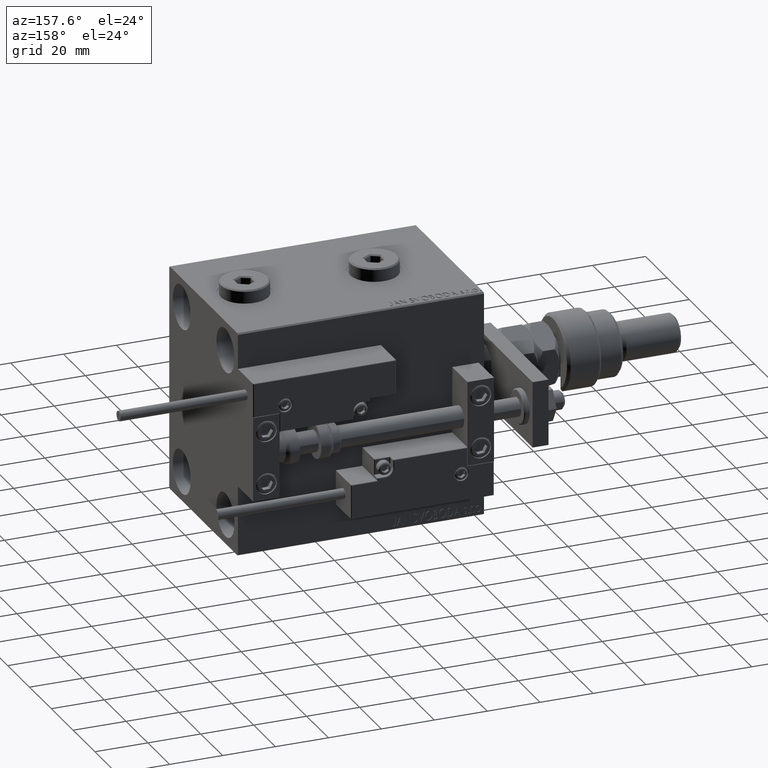
[diagram: clean part render]
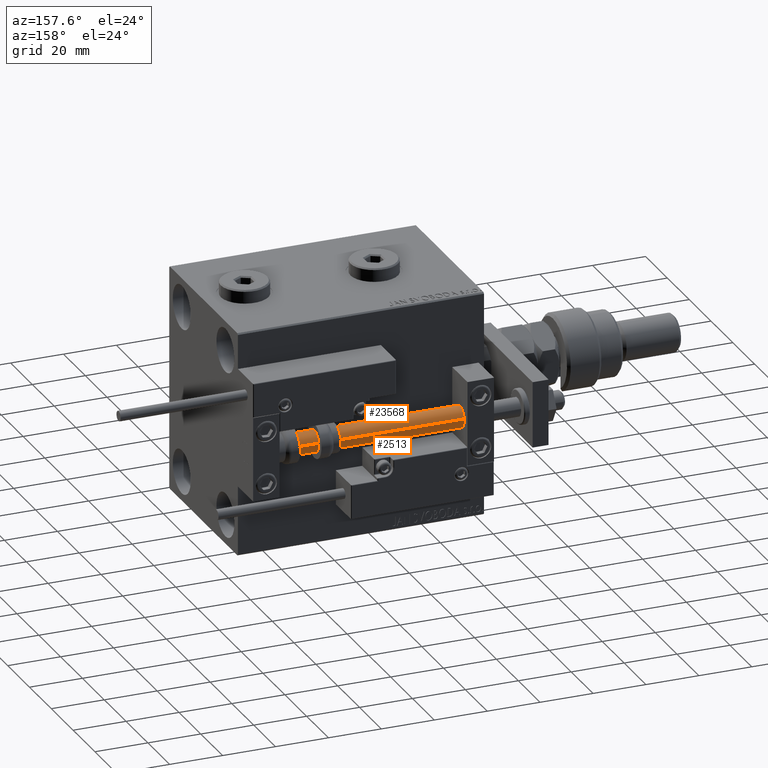
[diagram: same view with one multi-face feature highlighted, each face labeled with its STEP entity id]
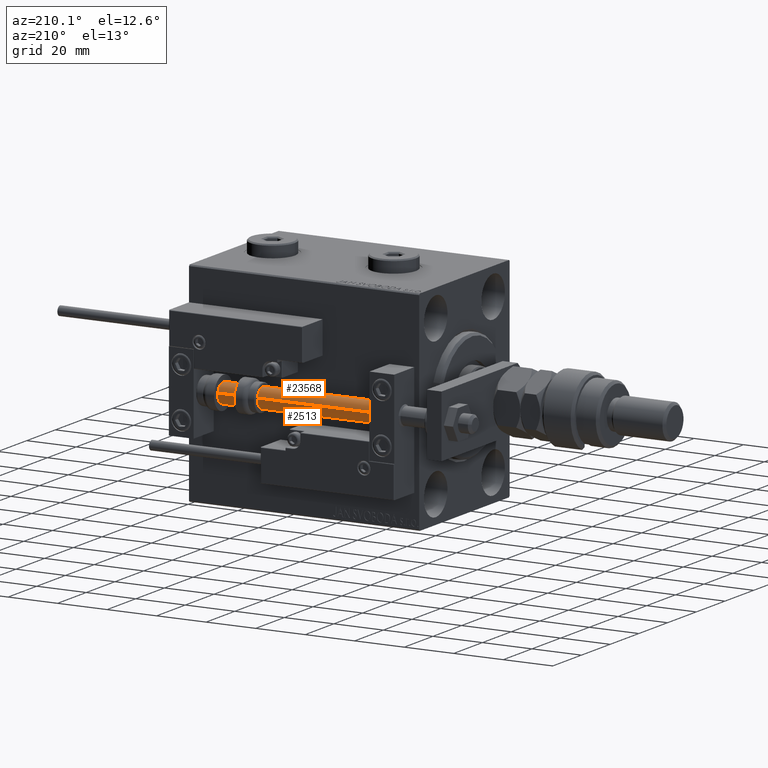
[diagram: same view with one multi-face feature highlighted, each face labeled with its STEP entity id]
A machine part, auxiliary view. The highlighted faces form ONE feature: a constant-radius fillet chain: 2 tangent blend faces with common blend radius 4 mm. The faces share edges in the B-rep.
A second angle (auxiliary view) of the same feature is appended — it is thin or edge-on in the first view.
Their STEP definitions:
[1] entity #2513 (Cylinder):
#1520 = CARTESIAN_POINT ( 'NONE',  ( 0.000000000000000000, 0.000000000000000000, 2.000000000000029310 ) ) ;
#2513 = ADVANCED_FACE ( 'NONE', ( #24175 ), #3296, .T. ) ;
#3296 = CYLINDRICAL_SURFACE ( 'NONE', #17734, 4.000000000000000000 ) ;
#5941 = DIRECTION ( 'NONE',  ( -0.000000000000000000, -0.000000000000000000, -1.000000000000000000 ) ) ;
#6016 = AXIS2_PLACEMENT_3D ( 'NONE', #21343, #42786, #46360 ) ;
#6204 = LINE ( 'NONE', #47993, #50582 ) ;
#7555 = VECTOR ( 'NONE', #52327, 1000.000000000000000 ) ;
#8118 = CARTESIAN_POINT ( 'NONE',  ( 4.000000000000000000, 4.898587196589411843E-16, 93.00000000000000000 ) ) ;
#14901 = CARTESIAN_POINT ( 'NONE',  ( -4.000000000000000000, 0.000000000000000000, 93.00000000000000000 ) ) ;
#15910 = DIRECTION ( 'NONE',  ( -1.000000000000000000, 0.000000000000000000, 0.000000000000000000 ) ) ;
#16128 = EDGE_LOOP ( 'NONE', ( #49964, #23891, #29041, #47975 ) ) ;
#16427 = EDGE_CURVE ( 'NONE', #46646, #40187, #6204, .T. ) ;
#17616 = EDGE_CURVE ( 'NONE', #53291, #20044, #52594, .T. ) ;
#17734 = AXIS2_PLACEMENT_3D ( 'NONE', #36802, #53597, #15910 ) ;
#18281 = DIRECTION ( 'NONE',  ( 1.000000000000000000, 0.000000000000000000, 0.000000000000000000 ) ) ;
#20044 = VERTEX_POINT ( 'NONE', #52359 ) ;
#21343 = CARTESIAN_POINT ( 'NONE',  ( 0.000000000000000000, 0.000000000000000000, 93.00000000000000000 ) ) ;
#22675 = DIRECTION ( 'NONE',  ( -0.000000000000000000, -0.000000000000000000, 1.000000000000000000 ) ) ;
#23891 = ORIENTED_EDGE ( 'NONE', *, *, #25937, .F. ) ;
#24175 = FACE_OUTER_BOUND ( 'NONE', #16128, .T. ) ;
#25937 = EDGE_CURVE ( 'NONE', #53291, #46646, #27933, .T. ) ;
#27933 = CIRCLE ( 'NONE', #6016, 4.000000000000000000 ) ;
#29041 = ORIENTED_EDGE ( 'NONE', *, *, #17616, .T. ) ;
#32727 = CIRCLE ( 'NONE', #46794, 4.000000000000000000 ) ;
#34897 = CARTESIAN_POINT ( 'NONE',  ( -4.000000000000000000, 0.000000000000000000, 93.00000000000000000 ) ) ;
#36802 = CARTESIAN_POINT ( 'NONE',  ( 0.000000000000000000, 0.000000000000000000, 93.00000000000000000 ) ) ;
#39090 = EDGE_CURVE ( 'NONE', #20044, #40187, #32727, .T. ) ;
#40187 = VERTEX_POINT ( 'NONE', #50681 ) ;
#42786 = DIRECTION ( 'NONE',  ( 0.000000000000000000, 0.000000000000000000, 1.000000000000000000 ) ) ;
#46360 = DIRECTION ( 'NONE',  ( 1.000000000000000000, 0.000000000000000000, 0.000000000000000000 ) ) ;
#46646 = VERTEX_POINT ( 'NONE', #8118 ) ;
#46794 = AXIS2_PLACEMENT_3D ( 'NONE', #1520, #22675, #18281 ) ;
#47975 = ORIENTED_EDGE ( 'NONE', *, *, #39090, .T. ) ;
#47993 = CARTESIAN_POINT ( 'NONE',  ( 4.000000000000000000, 4.898587196589411843E-16, 93.00000000000000000 ) ) ;
#49964 = ORIENTED_EDGE ( 'NONE', *, *, #16427, .F. ) ;
#50582 = VECTOR ( 'NONE', #5941, 1000.000000000000000 ) ;
#50681 = CARTESIAN_POINT ( 'NONE',  ( 4.000000000000000000, 4.898587196589411843E-16, 2.000000000000029310 ) ) ;
#52327 = DIRECTION ( 'NONE',  ( -0.000000000000000000, -0.000000000000000000, -1.000000000000000000 ) ) ;
#52359 = CARTESIAN_POINT ( 'NONE',  ( -4.000000000000000000, 0.000000000000000000, 2.000000000000029310 ) ) ;
#52594 = LINE ( 'NONE', #14901, #7555 ) ;
#53291 = VERTEX_POINT ( 'NONE', #34897 ) ;
#53597 = DIRECTION ( 'NONE',  ( -0.000000000000000000, -0.000000000000000000, -1.000000000000000000 ) ) ;
[2] entity #23568 (Cylinder):
#2179 = CYLINDRICAL_SURFACE ( 'NONE', #50858, 4.000000000000000000 ) ;
#2720 = FACE_OUTER_BOUND ( 'NONE', #34195, .T. ) ;
#4837 = ORIENTED_EDGE ( 'NONE', *, *, #17616, .F. ) ;
#5941 = DIRECTION ( 'NONE',  ( -0.000000000000000000, -0.000000000000000000, -1.000000000000000000 ) ) ;
#6204 = LINE ( 'NONE', #47993, #50582 ) ;
#7555 = VECTOR ( 'NONE', #52327, 1000.000000000000000 ) ;
#8118 = CARTESIAN_POINT ( 'NONE',  ( 4.000000000000000000, 4.898587196589411843E-16, 93.00000000000000000 ) ) ;
#10125 = DIRECTION ( 'NONE',  ( -0.000000000000000000, -0.000000000000000000, 1.000000000000000000 ) ) ;
#10404 = AXIS2_PLACEMENT_3D ( 'NONE', #14228, #10125, #51920 ) ;
#13086 = CARTESIAN_POINT ( 'NONE',  ( 0.000000000000000000, 0.000000000000000000, 93.00000000000000000 ) ) ;
#13354 = DIRECTION ( 'NONE',  ( 1.000000000000000000, 0.000000000000000000, 0.000000000000000000 ) ) ;
#14012 = AXIS2_PLACEMENT_3D ( 'NONE', #13086, #51038, #13354 ) ;
#14228 = CARTESIAN_POINT ( 'NONE',  ( 0.000000000000000000, 0.000000000000000000, 2.000000000000029310 ) ) ;
#14901 = CARTESIAN_POINT ( 'NONE',  ( -4.000000000000000000, 0.000000000000000000, 93.00000000000000000 ) ) ;
#16427 = EDGE_CURVE ( 'NONE', #46646, #40187, #6204, .T. ) ;
#17616 = EDGE_CURVE ( 'NONE', #53291, #20044, #52594, .T. ) ;
#18313 = CIRCLE ( 'NONE', #10404, 4.000000000000000000 ) ;
#18682 = CARTESIAN_POINT ( 'NONE',  ( 0.000000000000000000, 0.000000000000000000, 93.00000000000000000 ) ) ;
#20044 = VERTEX_POINT ( 'NONE', #52359 ) ;
#22315 = EDGE_CURVE ( 'NONE', #40187, #20044, #18313, .T. ) ;
#23332 = DIRECTION ( 'NONE',  ( -1.000000000000000000, 0.000000000000000000, 0.000000000000000000 ) ) ;
#23568 = ADVANCED_FACE ( 'NONE', ( #2720 ), #2179, .T. ) ;
#25881 = EDGE_CURVE ( 'NONE', #46646, #53291, #51671, .T. ) ;
#27453 = DIRECTION ( 'NONE',  ( -0.000000000000000000, -0.000000000000000000, -1.000000000000000000 ) ) ;
#34195 = EDGE_LOOP ( 'NONE', ( #44570, #53819, #42579, #4837 ) ) ;
#34897 = CARTESIAN_POINT ( 'NONE',  ( -4.000000000000000000, 0.000000000000000000, 93.00000000000000000 ) ) ;
#40187 = VERTEX_POINT ( 'NONE', #50681 ) ;
#42579 = ORIENTED_EDGE ( 'NONE', *, *, #22315, .T. ) ;
#44570 = ORIENTED_EDGE ( 'NONE', *, *, #25881, .F. ) ;
#46646 = VERTEX_POINT ( 'NONE', #8118 ) ;
#47993 = CARTESIAN_POINT ( 'NONE',  ( 4.000000000000000000, 4.898587196589411843E-16, 93.00000000000000000 ) ) ;
#50582 = VECTOR ( 'NONE', #5941, 1000.000000000000000 ) ;
#50681 = CARTESIAN_POINT ( 'NONE',  ( 4.000000000000000000, 4.898587196589411843E-16, 2.000000000000029310 ) ) ;
#50858 = AXIS2_PLACEMENT_3D ( 'NONE', #18682, #27453, #23332 ) ;
#51038 = DIRECTION ( 'NONE',  ( 0.000000000000000000, 0.000000000000000000, 1.000000000000000000 ) ) ;
#51671 = CIRCLE ( 'NONE', #14012, 4.000000000000000000 ) ;
#51920 = DIRECTION ( 'NONE',  ( 1.000000000000000000, 0.000000000000000000, 0.000000000000000000 ) ) ;
#52327 = DIRECTION ( 'NONE',  ( -0.000000000000000000, -0.000000000000000000, -1.000000000000000000 ) ) ;
#52359 = CARTESIAN_POINT ( 'NONE',  ( -4.000000000000000000, 0.000000000000000000, 2.000000000000029310 ) ) ;
#52594 = LINE ( 'NONE', #14901, #7555 ) ;
#53291 = VERTEX_POINT ( 'NONE', #34897 ) ;
#53819 = ORIENTED_EDGE ( 'NONE', *, *, #16427, .T. ) ;